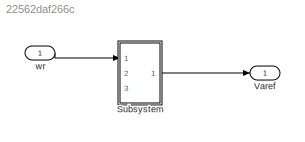
MODEL slx_22562daf266c
KIND model
CONFIG AbsTol = auto
CONFIG FixedStep = auto
CONFIG MaxStep = auto
CONFIG MinStep = auto
CONFIG RelTol = 1e-3
CONFIG SampleTimeConstraint = Unconstrained
CONFIG Solver = ode45
CONFIG SolverMode = Auto
CONFIG SolverName = ode45
CONFIG StartTime = 0.0
CONFIG StopTime = 10.0
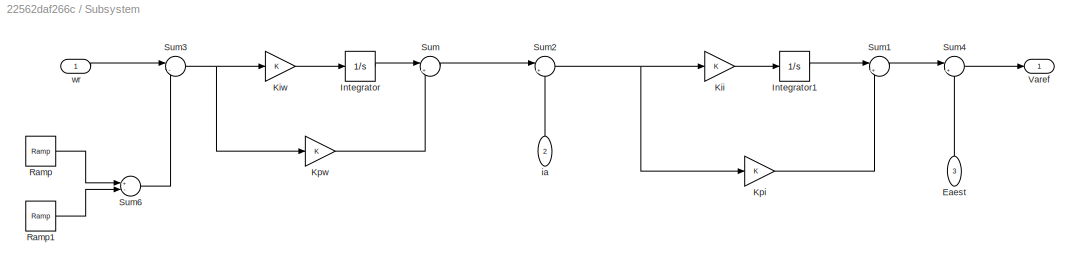
BLOCK [SubSystem] Subsystem
  Ports = [3, 1]
  RequestExecContextInheritance = off
BLOCK [Inport] Subsystem/Eaest
  IconDisplay = Port number
  Port = 3
BLOCK [Integrator] Subsystem/Integrator
  Ports = [1, 1]
BLOCK [Integrator] Subsystem/Integrator1
  Ports = [1, 1]
BLOCK [Gain] Subsystem/Kii
  OutDataTypeStr = Inherit: Inherit via internal rule
  ParamDataTypeStr = Inherit: Inherit via internal rule
  SaturateOnIntegerOverflow = off
BLOCK [Gain] Subsystem/Kiw
  OutDataTypeStr = Inherit: Inherit via internal rule
  ParamDataTypeStr = Inherit: Inherit via internal rule
  SaturateOnIntegerOverflow = off
BLOCK [Gain] Subsystem/Kpi
  OutDataTypeStr = Inherit: Inherit via internal rule
  ParamDataTypeStr = Inherit: Inherit via internal rule
  SaturateOnIntegerOverflow = off
BLOCK [Gain] Subsystem/Kpw
  OutDataTypeStr = Inherit: Inherit via internal rule
  ParamDataTypeStr = Inherit: Inherit via internal rule
  SaturateOnIntegerOverflow = off
BLOCK [Reference] Subsystem/Ramp  REF=simulink/Sources/Ramp
  Ports = [0, 1]
  SourceBlock = simulink/Sources/Ramp
  SourceType = Ramp
  VectorParams1D = on
  X0 = 0
  slope = 125
  start = 0
BLOCK [Reference] Subsystem/Ramp1  REF=simulink/Sources/Ramp
  Ports = [0, 1]
  SourceBlock = simulink/Sources/Ramp
  SourceType = Ramp
  VectorParams1D = on
  X0 = 0
  slope = 125
  start = 1
BLOCK [Sum] Subsystem/Sum
  IconShape = round
  InputSameDT = off
  Inputs = |++
  OutDataTypeStr = Inherit: Inherit via internal rule
  Ports = [2, 1]
  SaturateOnIntegerOverflow = off
BLOCK [Sum] Subsystem/Sum1
  IconShape = round
  InputSameDT = off
  Inputs = |++
  OutDataTypeStr = Inherit: Inherit via internal rule
  Ports = [2, 1]
  SaturateOnIntegerOverflow = off
BLOCK [Sum] Subsystem/Sum2
  IconShape = round
  InputSameDT = off
  Inputs = |+-
  OutDataTypeStr = Inherit: Inherit via internal rule
  Ports = [2, 1]
  SaturateOnIntegerOverflow = off
BLOCK [Sum] Subsystem/Sum3
  IconShape = round
  InputSameDT = off
  Inputs = |-+
  OutDataTypeStr = Inherit: Inherit via internal rule
  Ports = [2, 1]
  SaturateOnIntegerOverflow = off
BLOCK [Sum] Subsystem/Sum4
  IconShape = round
  InputSameDT = off
  Inputs = |++
  OutDataTypeStr = Inherit: Inherit via internal rule
  Ports = [2, 1]
  SaturateOnIntegerOverflow = off
BLOCK [Sum] Subsystem/Sum6
  InputSameDT = off
  Inputs = +-
  OutDataTypeStr = Inherit: Inherit via internal rule
  Ports = [2, 1]
  SaturateOnIntegerOverflow = off
BLOCK [Outport] Subsystem/Varef
  IconDisplay = Port number
BLOCK [Inport] Subsystem/ia
  IconDisplay = Port number
  Port = 2
BLOCK [Inport] Subsystem/wr
  IconDisplay = Port number
BLOCK [Outport] Varef
  IconDisplay = Port number
BLOCK [Inport] wr
  IconDisplay = Port number
LINE Subsystem/Eaest:1 -> Subsystem/Sum4:2
LINE Subsystem/Integrator1:1 -> Subsystem/Sum1:1
LINE Subsystem/Integrator:1 -> Subsystem/Sum:1
LINE Subsystem/Kii:1 -> Subsystem/Integrator1:1
LINE Subsystem/Kiw:1 -> Subsystem/Integrator:1
LINE Subsystem/Kpi:1 -> Subsystem/Sum1:2
LINE Subsystem/Kpw:1 -> Subsystem/Sum:2
LINE Subsystem/Ramp1:1 -> Subsystem/Sum6:2
LINE Subsystem/Ramp:1 -> Subsystem/Sum6:1
LINE Subsystem/Sum1:1 -> Subsystem/Sum4:1
NET Subsystem/Sum2:1 -> Subsystem/Kii:1, Subsystem/Kpi:1
NET Subsystem/Sum3:1 -> Subsystem/Kiw:1, Subsystem/Kpw:1
LINE Subsystem/Sum4:1 -> Subsystem/Varef:1
LINE Subsystem/Sum6:1 -> Subsystem/Sum3:2
LINE Subsystem/Sum:1 -> Subsystem/Sum2:1
LINE Subsystem/ia:1 -> Subsystem/Sum2:2
LINE Subsystem/wr:1 -> Subsystem/Sum3:1
LINE Subsystem:1 -> Varef:1
LINE wr:1 -> Subsystem:1
note: NET lines group one-source signal fan-out (src -> all destinations, sorted); 1:1 wires keep LINE
